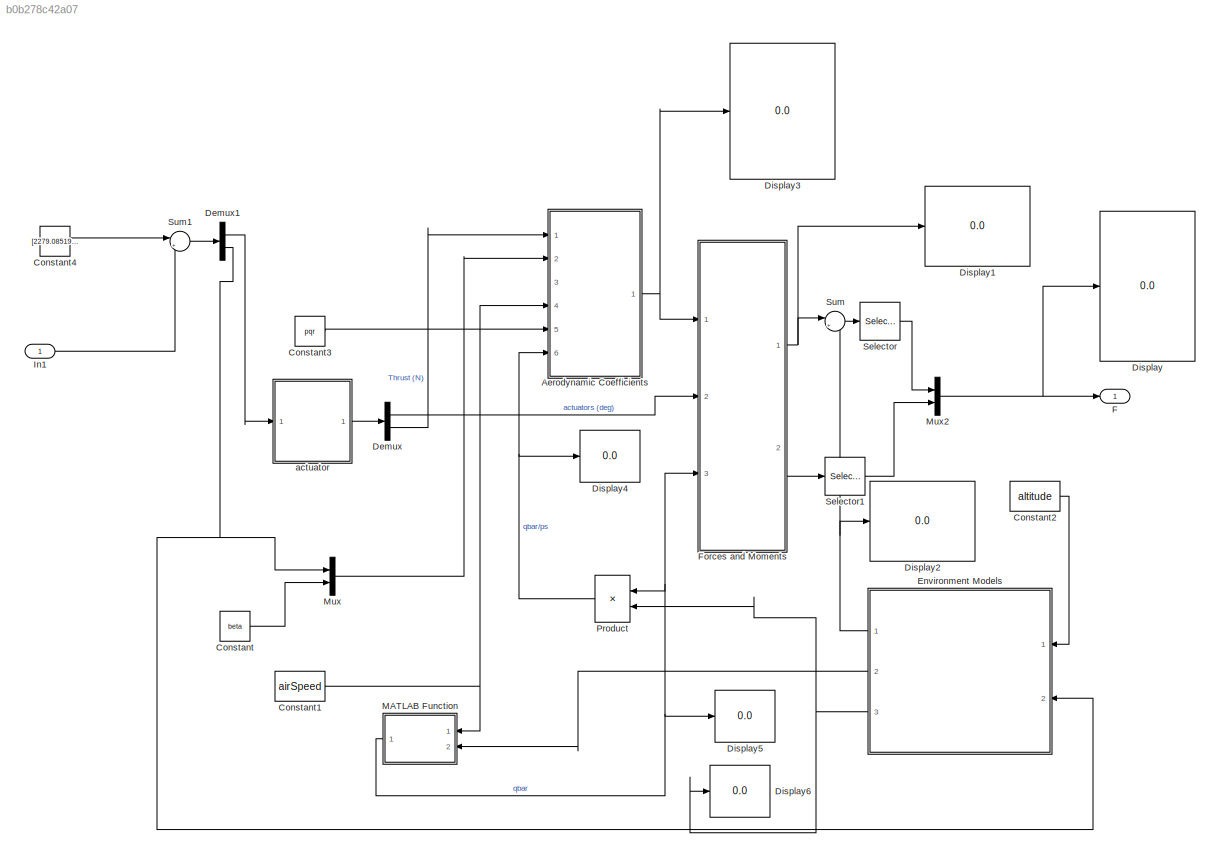
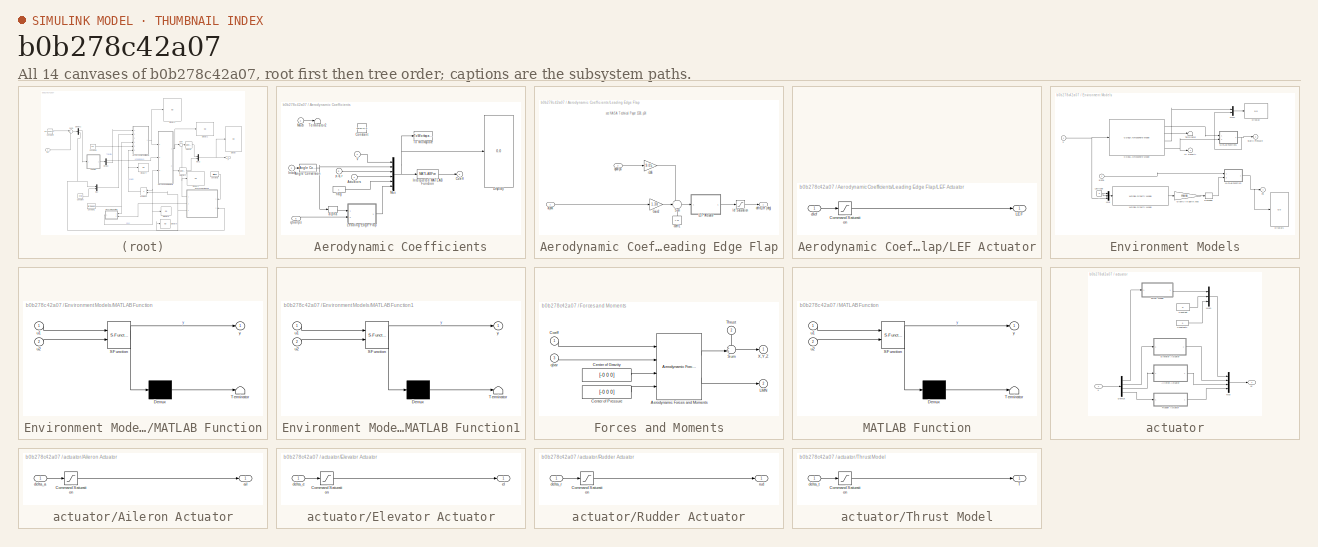
[diagram: thumbnail index - all 14 canvases of the model, root first then tree order]
MODEL slx_b0b278c42a07
KIND model
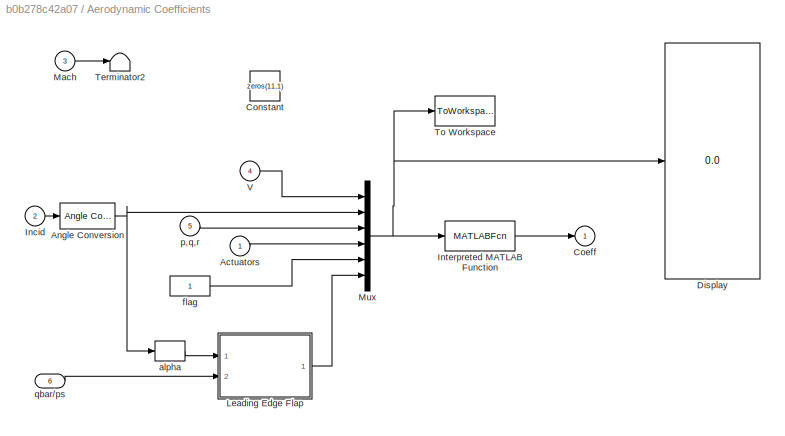
BLOCK [SubSystem] Aerodynamic Coefficients
  FunctionWithSeparateData = off
  MaskHideContents = off
  MinAlgLoopOccurrences = off
  Opaque = off
  Ports = [6, 1]
  PropExecContextOutsideSubsystem = off
  RTWSystemCode = Auto
  RequestExecContextInheritance = off
BLOCK [Inport] Aerodynamic Coefficients/Actuators
  IconDisplay = Port number
BLOCK [Reference] Aerodynamic Coefficients/Angle Conversion  REF=aerolibconvert2/Angle Conversion
  IU = rad
  OU = deg
  Ports = [1, 1]
  SourceBlock = aerolibconvert2/Angle Conversion
  SourceType = Angle Conversion
BLOCK [Outport] Aerodynamic Coefficients/Coeff
  IconDisplay = Port number
  InitialOutput = 0
BLOCK [Constant] Aerodynamic Coefficients/Constant
  Value = zeros(11,1)
BLOCK [Display] Aerodynamic Coefficients/Display
  Decimation = 12
  Lockdown = off
  Ports = [1]
BLOCK [Inport] Aerodynamic Coefficients/Incid
  IconDisplay = Port number
  Port = 2
BLOCK [MATLABFcn] Aerodynamic Coefficients/Interpreted MATLAB Function
  MATLABFcn = F16Coef1
  OutputDimensions = 6
  Ports = [1, 1]
BLOCK [SubSystem] Aerodynamic Coefficients/Leading Edge Flap
  FunctionWithSeparateData = off
  MaskHideContents = off
  MinAlgLoopOccurrences = off
  Opaque = off
  Ports = [2, 1]
  PropExecContextOutsideSubsystem = off
  RTWSystemCode = Auto
  RequestExecContextInheritance = off
BLOCK [Gain] Aerodynamic Coefficients/Leading Edge Flap/Gain2
  Gain = 1.38
BLOCK [SubSystem] Aerodynamic Coefficients/Leading Edge Flap/LEF Actuator
  FunctionWithSeparateData = off
  MaskHideContents = off
  MinAlgLoopOccurrences = off
  Opaque = off
  Ports = [1, 1]
  PropExecContextOutsideSubsystem = off
  RTWSystemCode = Auto
  RequestExecContextInheritance = off
BLOCK [Saturate] Aerodynamic Coefficients/Leading Edge Flap/LEF Actuator/Command Saturation
  InputPortMap = u0
  LowerLimit = 0
  Ports = [1, 1]
  UpperLimit = 25
BLOCK [Outport] Aerodynamic Coefficients/Leading Edge Flap/LEF Actuator/LEF
  IconDisplay = Port number
BLOCK [Inport] Aerodynamic Coefficients/Leading Edge Flap/LEF Actuator/dlef
  IconDisplay = Port number
BLOCK [Sum] Aerodynamic Coefficients/Leading Edge Flap/Sum
  IconShape = round
  Inputs = -|+|+
  Ports = [3, 1]
BLOCK [Inport] Aerodynamic Coefficients/Leading Edge Flap/alpha
  IconDisplay = Port number
BLOCK [Constant] Aerodynamic Coefficients/Leading Edge Flap/coeff1
  Value = 1.45
BLOCK [Outport] Aerodynamic Coefficients/Leading Edge Flap/delta_lef (deg)
  IconDisplay = Port number
BLOCK [Saturate] Aerodynamic Coefficients/Leading Edge Flap/lef Saturation
  InputPortMap = u0
  LowerLimit = 0
  Ports = [1, 1]
  UpperLimit = 25
BLOCK [Inport] Aerodynamic Coefficients/Leading Edge Flap/qbar//ps
  IconDisplay = Port number
  Port = 2
BLOCK [Gain] Aerodynamic Coefficients/Leading Edge Flap/r2d6
  Gain = 9.05
BLOCK [Inport] Aerodynamic Coefficients/Mach
  IconDisplay = Port number
  Port = 3
BLOCK [Mux] Aerodynamic Coefficients/Mux
  DisplayOption = bar
  Inputs = 6
  Ports = [6, 1]
BLOCK [Terminator] Aerodynamic Coefficients/Terminator2
BLOCK [ToWorkspace] Aerodynamic Coefficients/To Workspace
  MaxDataPoints = inf
  Ports = [1]
  SampleTime = -1
  VariableName = simout
BLOCK [Inport] Aerodynamic Coefficients/V
  IconDisplay = Port number
  Port = 4
BLOCK [Selector] Aerodynamic Coefficients/alpha
  IndexOptions = Index vector (dialog)
  Indices = 1
  InputPortWidth = 2
  OutputSizes = 1
  Ports = [1, 1]
BLOCK [Constant] Aerodynamic Coefficients/flag
BLOCK [Inport] Aerodynamic Coefficients/p,q,r
  IconDisplay = Port number
  Port = 5
BLOCK [Inport] Aerodynamic Coefficients/qbar//ps
  IconDisplay = Port number
  Port = 6
BLOCK [Constant] Constant
  Value = beta
BLOCK [Constant] Constant1
  Value = airSpeed
BLOCK [Constant] Constant2
  Value = altitude
BLOCK [Constant] Constant3
  Value = pqr
BLOCK [Constant] Constant4
  Value = [2279.08519954656,-2.979731649,0.00874607850103852,0.0680302158182712,0.115609526503456]
BLOCK [Demux] Demux
  DisplayOption = bar
  Outputs = 2
  Ports = [1, 2]
BLOCK [Demux] Demux1
  DisplayOption = bar
  Outputs = [4,1]
  Ports = [1, 2]
BLOCK [Display] Display
  Decimation = 6
  Lockdown = off
  Ports = [1]
BLOCK [Display] Display1
  Decimation = 3
  Lockdown = off
  Ports = [1]
BLOCK [Display] Display2
  Decimation = 3
  Lockdown = off
  Ports = [1]
BLOCK [Display] Display3
  Decimation = 6
  Lockdown = off
  Ports = [1]
BLOCK [Display] Display4
  Decimation = 1
  Lockdown = off
  Ports = [1]
BLOCK [Display] Display5
  Decimation = 1
  Lockdown = off
  Ports = [1]
BLOCK [Display] Display6
  Decimation = 1
  Lockdown = off
  Ports = [1]
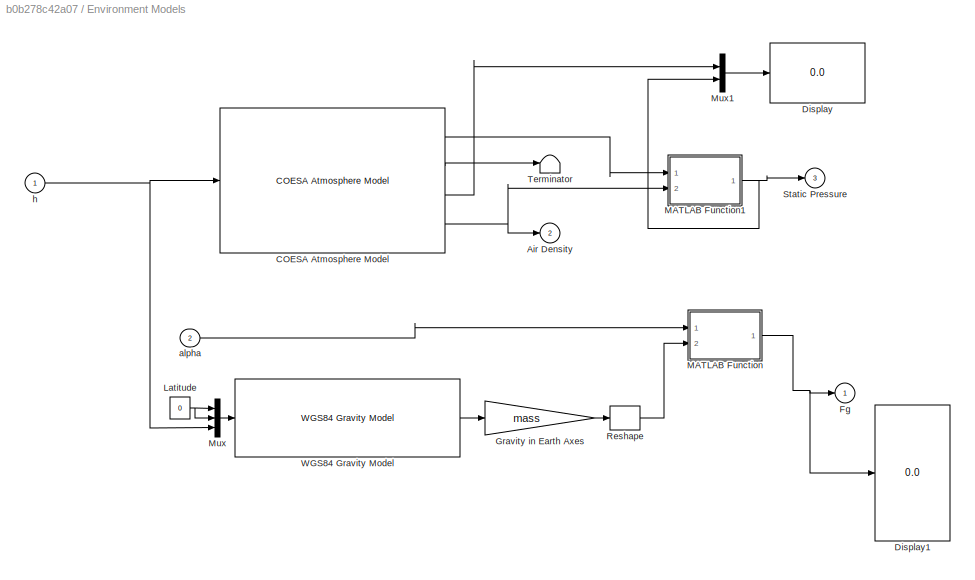
BLOCK [SubSystem] Environment Models
  FunctionWithSeparateData = off
  MaskHideContents = off
  MinAlgLoopOccurrences = off
  Opaque = off
  Ports = [2, 3]
  PropExecContextOutsideSubsystem = off
  RTWSystemCode = Auto
  RequestExecContextInheritance = off
BLOCK [Outport] Environment Models/Air Density
  IconDisplay = Port number
  InitialOutput = 0
  Port = 2
BLOCK [Reference] Environment Models/COESA Atmosphere Model  REF=aerolibatmos2/COESA Atmosphere Model
  Ports = [1, 4]
  SourceBlock = aerolibatmos2/COESA Atmosphere Model
  SourceType = Atmosphere Model
  action = None
  envelope_percent = 1%
  envelope_var = High temperature
  model = Profile
  profile_alt = 5 km (16404 ft)
  profile_percent = 10%
  profile_var = High temperature
  spec = 1976 COESA-extended U.S. Standard Atmosphere
  units = English (Velocity in ft/s)
BLOCK [Display] Environment Models/Display
  Decimation = 2
  Lockdown = off
  Ports = [1]
BLOCK [Display] Environment Models/Display1
  Decimation = 3
  Lockdown = off
  Ports = [1]
BLOCK [Outport] Environment Models/Fg
  IconDisplay = Port number
  InitialOutput = 0
BLOCK [Gain] Environment Models/Gravity in Earth Axes
  Gain = mass
BLOCK [Constant] Environment Models/Latitude
  Value = 0
BLOCK [SubSystem] Environment Models/MATLAB Function
  ErrorFcn = Stateflow.Translate.translate
  FunctionWithSeparateData = off
  MaskHideContents = off
  MinAlgLoopOccurrences = off
  Opaque = off
  PermitHierarchicalResolution = ExplicitOnly
  Ports = [2, 1]
  PropExecContextOutsideSubsystem = off
  RTWSystemCode = Auto
  RequestExecContextInheritance = off
  SFBlockType = MATLAB Function
  TreatAsAtomicUnit = on
BLOCK [Demux] Environment Models/MATLAB Function/ Demux 
  Outputs = 1
  Ports = [1, 1]
BLOCK [S-Function] Environment Models/MATLAB Function/ SFunction 
  EnableBusSupport = on
  FunctionName = sf_sfun
  PortCounts = [2 2]
  Ports = [2, 2]
  Tag = Stateflow S-Function F16trim 2
BLOCK [Terminator] Environment Models/MATLAB Function/ Terminator 
BLOCK [Inport] Environment Models/MATLAB Function/u1
  IconDisplay = Port number
BLOCK [Inport] Environment Models/MATLAB Function/u2
  IconDisplay = Port number
  Port = 2
BLOCK [Outport] Environment Models/MATLAB Function/y
  IconDisplay = Port number
BLOCK [SubSystem] Environment Models/MATLAB Function1
  ErrorFcn = Stateflow.Translate.translate
  FunctionWithSeparateData = off
  MaskHideContents = off
  MinAlgLoopOccurrences = off
  Opaque = off
  PermitHierarchicalResolution = ExplicitOnly
  Ports = [2, 1]
  PropExecContextOutsideSubsystem = off
  RTWSystemCode = Auto
  RequestExecContextInheritance = off
  SFBlockType = MATLAB Function
  TreatAsAtomicUnit = on
BLOCK [Demux] Environment Models/MATLAB Function1/ Demux 
  Outputs = 1
  Ports = [1, 1]
BLOCK [S-Function] Environment Models/MATLAB Function1/ SFunction 
  EnableBusSupport = on
  FunctionName = sf_sfun
  PortCounts = [2 2]
  Ports = [2, 2]
  Tag = Stateflow S-Function F16trim 3
BLOCK [Terminator] Environment Models/MATLAB Function1/ Terminator 
BLOCK [Inport] Environment Models/MATLAB Function1/u1
  IconDisplay = Port number
BLOCK [Inport] Environment Models/MATLAB Function1/u2
  IconDisplay = Port number
  Port = 2
BLOCK [Outport] Environment Models/MATLAB Function1/y
  IconDisplay = Port number
BLOCK [Mux] Environment Models/Mux
  DisplayOption = bar
  Inputs = 3
  Ports = [3, 1]
BLOCK [Mux] Environment Models/Mux1
  DisplayOption = bar
  Inputs = 2
  Ports = [2, 1]
BLOCK [Reshape] Environment Models/Reshape
  Ports = [1, 1]
BLOCK [Outport] Environment Models/Static Pressure
  IconDisplay = Port number
  Port = 3
BLOCK [Terminator] Environment Models/Terminator
BLOCK [Reference] Environment Models/WGS84 Gravity Model   REF=aerolibgravity2/WGS84 Gravity Model 
  Ports = [1, 1]
  SourceBlock = aerolibgravity2/WGS84 Gravity Model
  SourceType = WGS84 Gravity Model 3D
  action = None
  day = 10
  jd_loc = off
  model = WGS84 Taylor Series
  month = October
  no_atmos = on
  no_centrifugal = on
  precessing = on
  units = English
  year = 2004
BLOCK [Inport] Environment Models/alpha
  IconDisplay = Port number
  Port = 2
BLOCK [Inport] Environment Models/h
  IconDisplay = Port number
  PortDimensions = 1
BLOCK [Outport] F
  IconDisplay = Port number
  PortDimensions = 2
BLOCK [SubSystem] Forces and Moments
  FunctionWithSeparateData = off
  MaskHideContents = off
  MinAlgLoopOccurrences = off
  Opaque = off
  Ports = [3, 2]
  PropExecContextOutsideSubsystem = off
  RTWSystemCode = Auto
  RequestExecContextInheritance = off
BLOCK [Reference] Forces and Moments/Aerodynamic Forces and Moments   REF=aerolibadyn/Aerodynamic
Forces and Moments 
  Ports = [4, 2]
  S = S_ref
  SourceBlock = aerolibadyn/Aerodynamic\nForces and Moments
  SourceType = Aerodynamic Forces and Moments
  b = b_ref
  cbar = d_ref
  inputAxes = Body
  outputForceAxes = Body
  outputMomentAxes = Body
BLOCK [Constant] Forces and Moments/Center of Gravity
  Value = [-0 0 0]
BLOCK [Constant] Forces and Moments/Center of Pressure
  Value = [-0 0 0]
BLOCK [Inport] Forces and Moments/Coeff
  IconDisplay = Port number
BLOCK [Outport] Forces and Moments/LMN
  IconDisplay = Port number
  InitialOutput = 0
  Port = 2
BLOCK [Sum] Forces and Moments/Sum
  IconShape = round
  Inputs = ++|
  Ports = [2, 1]
BLOCK [Inport] Forces and Moments/Thrust
  IconDisplay = Port number
  Port = 2
BLOCK [Outport] Forces and Moments/X,Y,Z
  IconDisplay = Port number
  InitialOutput = 0
BLOCK [Inport] Forces and Moments/qbar
  IconDisplay = Port number
  Port = 3
BLOCK [Inport] In1
  IconDisplay = Port number
  PortDimensions = 5
BLOCK [SubSystem] MATLAB Function
  ErrorFcn = Stateflow.Translate.translate
  FunctionWithSeparateData = off
  MaskHideContents = off
  MinAlgLoopOccurrences = off
  Opaque = off
  PermitHierarchicalResolution = ExplicitOnly
  Ports = [2, 1]
  PropExecContextOutsideSubsystem = off
  RTWSystemCode = Auto
  RequestExecContextInheritance = off
  SFBlockType = MATLAB Function
  TreatAsAtomicUnit = on
BLOCK [Demux] MATLAB Function/ Demux 
  Outputs = 1
  Ports = [1, 1]
BLOCK [S-Function] MATLAB Function/ SFunction 
  EnableBusSupport = on
  FunctionName = sf_sfun
  PortCounts = [2 2]
  Ports = [2, 2]
  Tag = Stateflow S-Function F16trim 1
BLOCK [Terminator] MATLAB Function/ Terminator 
BLOCK [Inport] MATLAB Function/u1
  IconDisplay = Port number
BLOCK [Inport] MATLAB Function/u2
  IconDisplay = Port number
  Port = 2
BLOCK [Outport] MATLAB Function/y
  IconDisplay = Port number
BLOCK [Mux] Mux
  DisplayOption = bar
  Inputs = 2
  Ports = [2, 1]
BLOCK [Mux] Mux2
  DisplayOption = bar
  Inputs = 2
  Ports = [2, 1]
BLOCK [Product] Product
  Inputs = */
  Ports = [2, 1]
  RndMeth = Floor
BLOCK [Selector] Selector
  IndexOptions = Index vector (dialog)
  Indices = [3]
  InputPortWidth = 3
  OutputSizes = 1
  Ports = [1, 1]
BLOCK [Selector] Selector1
  IndexOptions = Index vector (dialog)
  Indices = [2]
  InputPortWidth = 3
  OutputSizes = 1
  Ports = [1, 1]
BLOCK [Sum] Sum
  IconShape = round
  Inputs = |++
  Ports = [2, 1]
BLOCK [Sum] Sum1
  IconShape = round
  InputSameDT = off
  Inputs = |++
  OutDataTypeStr = Inherit: Inherit via internal rule
  Ports = [2, 1]
  SaturateOnIntegerOverflow = off
BLOCK [SubSystem] actuator
  FunctionWithSeparateData = off
  MaskHideContents = off
  MinAlgLoopOccurrences = off
  Opaque = off
  Ports = [1, 1]
  PropExecContextOutsideSubsystem = off
  RTWSystemCode = Auto
  RequestExecContextInheritance = off
BLOCK [SubSystem] actuator/Aileron Actuator
  FunctionWithSeparateData = off
  MaskHideContents = off
  MinAlgLoopOccurrences = off
  Opaque = off
  Ports = [1, 1]
  PropExecContextOutsideSubsystem = off
  RTWSystemCode = Auto
  RequestExecContextInheritance = off
BLOCK [Saturate] actuator/Aileron Actuator/Command Saturation
  InputPortMap = u0
  LowerLimit = -21.5
  Ports = [1, 1]
  UpperLimit = 21.5
BLOCK [Outport] actuator/Aileron Actuator/ail
  IconDisplay = Port number
BLOCK [Inport] actuator/Aileron Actuator/delta_a
  IconDisplay = Port number
BLOCK [Constant] actuator/Constant
  Value = 0
BLOCK [Constant] actuator/Constant1
  Value = 0
BLOCK [Demux] actuator/Demux
  DisplayOption = bar
  Ports = [1, 4]
BLOCK [SubSystem] actuator/Elevator Actuator
  FunctionWithSeparateData = off
  MaskHideContents = off
  MinAlgLoopOccurrences = off
  Opaque = off
  Ports = [1, 1]
  PropExecContextOutsideSubsystem = off
  RTWSystemCode = Auto
  RequestExecContextInheritance = off
BLOCK [Saturate] actuator/Elevator Actuator/Command Saturation
  InputPortMap = u0
  LowerLimit = -25
  Ports = [1, 1]
  UpperLimit = 25
BLOCK [Inport] actuator/Elevator Actuator/delta_e
  IconDisplay = Port number
BLOCK [Outport] actuator/Elevator Actuator/el
  IconDisplay = Port number
BLOCK [Mux] actuator/Mux
  DisplayOption = bar
  Ports = [4, 1]
BLOCK [Mux] actuator/Mux1
  DisplayOption = bar
  Inputs = 3
  Ports = [3, 1]
BLOCK [SubSystem] actuator/Rudder Actuator
  FunctionWithSeparateData = off
  MaskHideContents = off
  MinAlgLoopOccurrences = off
  Opaque = off
  Ports = [1, 1]
  PropExecContextOutsideSubsystem = off
  RTWSystemCode = Auto
  RequestExecContextInheritance = off
BLOCK [Saturate] actuator/Rudder Actuator/Command Saturation
  InputPortMap = u0
  LowerLimit = -30
  Ports = [1, 1]
  UpperLimit = 30
BLOCK [Inport] actuator/Rudder Actuator/delta_r
  IconDisplay = Port number
BLOCK [Outport] actuator/Rudder Actuator/rud
  IconDisplay = Port number
BLOCK [SubSystem] actuator/Thrust Model
  FunctionWithSeparateData = off
  MaskHideContents = off
  MinAlgLoopOccurrences = off
  Opaque = off
  Ports = [1, 1]
  PropExecContextOutsideSubsystem = off
  RTWSystemCode = Auto
  RequestExecContextInheritance = off
BLOCK [Saturate] actuator/Thrust Model/Command Saturation
  InputPortMap = u0
  LowerLimit = 1000
  Ports = [1, 1]
  UpperLimit = 19000
BLOCK [Outport] actuator/Thrust Model/T
  IconDisplay = Port number
BLOCK [Inport] actuator/Thrust Model/delta_t
  IconDisplay = Port number
BLOCK [Inport] actuator/u
  IconDisplay = Port number
BLOCK [Outport] actuator/uc
  IconDisplay = Port number
ANNOTATION Aerodynamic Coefficients/Leading Edge Flap: see NASA Technical Paper 1538, p34
LINE Aerodynamic Coefficients/Actuators:1 -> Aerodynamic Coefficients/Mux:4
NET Aerodynamic Coefficients/Angle Conversion:1 -> Aerodynamic Coefficients/Mux:2, Aerodynamic Coefficients/alpha:1
LINE Aerodynamic Coefficients/Incid:1 -> Aerodynamic Coefficients/Angle Conversion:1
LINE Aerodynamic Coefficients/Interpreted MATLAB Function:1 -> Aerodynamic Coefficients/Coeff:1
LINE Aerodynamic Coefficients/Leading Edge Flap/Gain2:1 -> Aerodynamic Coefficients/Leading Edge Flap/Sum:2
LINE Aerodynamic Coefficients/Leading Edge Flap/LEF Actuator/Command Saturation:1 -> Aerodynamic Coefficients/Leading Edge Flap/LEF Actuator/LEF:1
LINE Aerodynamic Coefficients/Leading Edge Flap/LEF Actuator/dlef:1 -> Aerodynamic Coefficients/Leading Edge Flap/LEF Actuator/Command Saturation:1
LINE Aerodynamic Coefficients/Leading Edge Flap/LEF Actuator:1 -> Aerodynamic Coefficients/Leading Edge Flap/lef Saturation:1
LINE Aerodynamic Coefficients/Leading Edge Flap/Sum:1 -> Aerodynamic Coefficients/Leading Edge Flap/LEF Actuator:1
LINE Aerodynamic Coefficients/Leading Edge Flap/alpha:1 -> Aerodynamic Coefficients/Leading Edge Flap/Gain2:1
LINE Aerodynamic Coefficients/Leading Edge Flap/coeff1:1 -> Aerodynamic Coefficients/Leading Edge Flap/Sum:3
LINE Aerodynamic Coefficients/Leading Edge Flap/lef Saturation:1 -> Aerodynamic Coefficients/Leading Edge Flap/delta_lef (deg):1
LINE Aerodynamic Coefficients/Leading Edge Flap/qbar//ps:1 -> Aerodynamic Coefficients/Leading Edge Flap/r2d6:1
LINE Aerodynamic Coefficients/Leading Edge Flap/r2d6:1 -> Aerodynamic Coefficients/Leading Edge Flap/Sum:1
LINE Aerodynamic Coefficients/Leading Edge Flap:1 -> Aerodynamic Coefficients/Mux:6
LINE Aerodynamic Coefficients/Mach:1 -> Aerodynamic Coefficients/Terminator2:1
NET Aerodynamic Coefficients/Mux:1 -> Aerodynamic Coefficients/Display:1, Aerodynamic Coefficients/Interpreted MATLAB Function:1, Aerodynamic Coefficients/To Workspace:1
LINE Aerodynamic Coefficients/V:1 -> Aerodynamic Coefficients/Mux:1
LINE Aerodynamic Coefficients/alpha:1 -> Aerodynamic Coefficients/Leading Edge Flap:1
LINE Aerodynamic Coefficients/flag:1 -> Aerodynamic Coefficients/Mux:5
LINE Aerodynamic Coefficients/p,q,r:1 -> Aerodynamic Coefficients/Mux:3
LINE Aerodynamic Coefficients/qbar//ps:1 -> Aerodynamic Coefficients/Leading Edge Flap:2
NET Aerodynamic Coefficients:1 -> Display3:1, Forces and Moments:1
NET Constant1:1 -> Aerodynamic Coefficients:4, MATLAB Function:1
LINE Constant2:1 -> Environment Models:1
LINE Constant3:1 -> Aerodynamic Coefficients:5
LINE Constant4:1 -> Sum1:1
LINE Constant:1 -> Mux:2
LINE Demux1:1 -> actuator:1
NET Demux1:2 -> Environment Models:2, Mux:1
LINE Demux:1 -> Forces and Moments:2
LINE Demux:2 -> Aerodynamic Coefficients:1
LINE Environment Models/COESA Atmosphere Model:1 -> Environment Models/MATLAB Function1:1
LINE Environment Models/COESA Atmosphere Model:2 -> Environment Models/Terminator:1
LINE Environment Models/COESA Atmosphere Model:3 -> Environment Models/Mux1:1
NET Environment Models/COESA Atmosphere Model:4 -> Environment Models/Air Density:1, Environment Models/MATLAB Function1:2
LINE Environment Models/Gravity in Earth Axes:1 -> Environment Models/Reshape:1
NET Environment Models/Latitude:1 -> Environment Models/Mux:1, Environment Models/Mux:2
NET Environment Models/MATLAB Function1:1 -> Environment Models/Mux1:2, Environment Models/Static Pressure:1
NET Environment Models/MATLAB Function:1 -> Environment Models/Display1:1, Environment Models/Fg:1
LINE Environment Models/Mux1:1 -> Environment Models/Display:1
LINE Environment Models/Mux:1 -> Environment Models/WGS84 Gravity Model :1
LINE Environment Models/Reshape:1 -> Environment Models/MATLAB Function:2
LINE Environment Models/WGS84 Gravity Model :1 -> Environment Models/Gravity in Earth Axes:1
LINE Environment Models/alpha:1 -> Environment Models/MATLAB Function:1
NET Environment Models/h:1 -> Environment Models/COESA Atmosphere Model:1, Environment Models/Mux:3
NET Environment Models:1 -> Display2:1, Sum:2
LINE Environment Models:2 -> MATLAB Function:2
NET Environment Models:3 -> Display6:1, Product:2
LINE Forces and Moments/Aerodynamic Forces and Moments :1 -> Forces and Moments/Sum:2
LINE Forces and Moments/Aerodynamic Forces and Moments :2 -> Forces and Moments/LMN:1
LINE Forces and Moments/Center of Gravity:1 -> Forces and Moments/Aerodynamic Forces and Moments :3
LINE Forces and Moments/Center of Pressure:1 -> Forces and Moments/Aerodynamic Forces and Moments :4
LINE Forces and Moments/Coeff:1 -> Forces and Moments/Aerodynamic Forces and Moments :1
LINE Forces and Moments/Sum:1 -> Forces and Moments/X,Y,Z:1
LINE Forces and Moments/Thrust:1 -> Forces and Moments/Sum:1
LINE Forces and Moments/qbar:1 -> Forces and Moments/Aerodynamic Forces and Moments :2
NET Forces and Moments:1 -> Display1:1, Sum:1
LINE Forces and Moments:2 -> Selector1:1
LINE In1:1 -> Sum1:2
NET MATLAB Function:1 -> Display5:1, Forces and Moments:3, Product:1
NET Mux2:1 -> Display:1, F:1
LINE Mux:1 -> Aerodynamic Coefficients:2
NET Product:1 -> Aerodynamic Coefficients:6, Display4:1
LINE Selector1:1 -> Mux2:2
LINE Selector:1 -> Mux2:1
LINE Sum1:1 -> Demux1:1
LINE Sum:1 -> Selector:1
LINE actuator/Aileron Actuator/Command Saturation:1 -> actuator/Aileron Actuator/ail:1
LINE actuator/Aileron Actuator/delta_a:1 -> actuator/Aileron Actuator/Command Saturation:1
LINE actuator/Aileron Actuator:1 -> actuator/Mux:3
LINE actuator/Constant1:1 -> actuator/Mux1:3
LINE actuator/Constant:1 -> actuator/Mux1:2
LINE actuator/Demux:1 -> actuator/Thrust Model:1
LINE actuator/Demux:2 -> actuator/Elevator Actuator:1
LINE actuator/Demux:3 -> actuator/Aileron Actuator:1
LINE actuator/Demux:4 -> actuator/Rudder Actuator:1
LINE actuator/Elevator Actuator/Command Saturation:1 -> actuator/Elevator Actuator/el:1
LINE actuator/Elevator Actuator/delta_e:1 -> actuator/Elevator Actuator/Command Saturation:1
LINE actuator/Elevator Actuator:1 -> actuator/Mux:2
LINE actuator/Mux1:1 -> actuator/Mux:1
LINE actuator/Mux:1 -> actuator/uc:1
LINE actuator/Rudder Actuator/Command Saturation:1 -> actuator/Rudder Actuator/rud:1
LINE actuator/Rudder Actuator/delta_r:1 -> actuator/Rudder Actuator/Command Saturation:1
LINE actuator/Rudder Actuator:1 -> actuator/Mux:4
LINE actuator/Thrust Model/Command Saturation:1 -> actuator/Thrust Model/T:1
LINE actuator/Thrust Model/delta_t:1 -> actuator/Thrust Model/Command Saturation:1
LINE actuator/Thrust Model:1 -> actuator/Mux1:1
LINE actuator/u:1 -> actuator/Demux:1
LINE actuator:1 -> Demux:1
note: NET lines group one-source signal fan-out (src -> all destinations, sorted); 1:1 wires keep LINE
